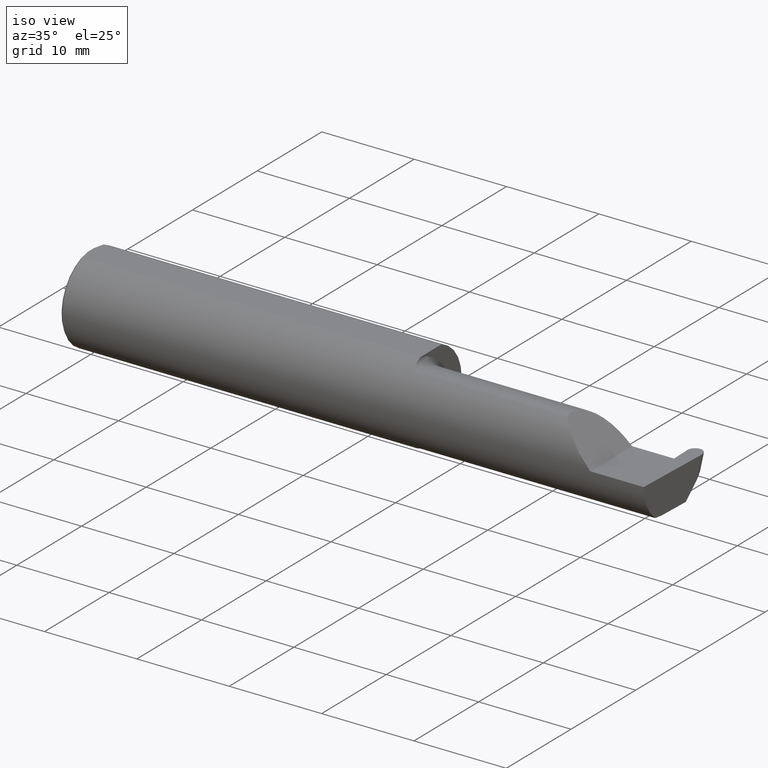
[diagram: clean part render]
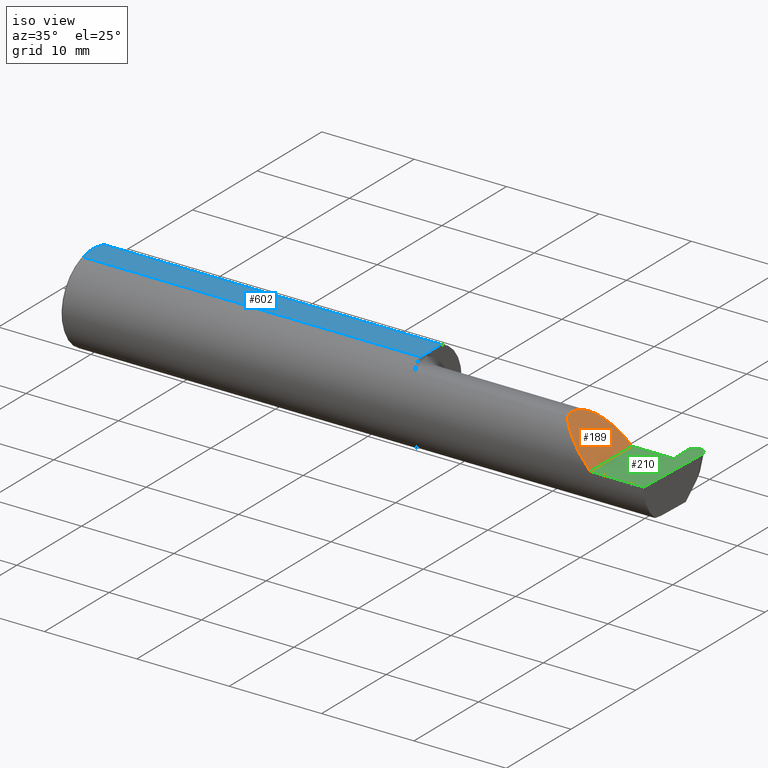
[diagram: same view with three faces highlighted in distinct colors, each labeled with its STEP entity id]
A machine part, iso view with three faces highlighted in distinct colors.
Their STEP definitions:

[orange] entity #189 — the highlighted planar face has unit normal (-0.7071, 0, -0.7071).
#40 = VERTEX_POINT ( 'NONE', #167 ) ;
#65 = DIRECTION ( 'NONE',  ( -0.7071067811865441310, 0.000000000000000000, -0.7071067811865510144 ) ) ;
#93 = EDGE_CURVE ( 'NONE', #40, #289, #173, .T. ) ;
#95 = CARTESIAN_POINT ( 'NONE',  ( 2.113883229301068312, -0.1172600179964011224, 0.1461167706989300596 ) ) ;
#107 = CARTESIAN_POINT ( 'NONE',  ( 2.202189699843947857, -0.1873500000000000165, 0.05781030015605082700 ) ) ;
#116 = ORIENTED_EDGE ( 'NONE', *, *, #372, .T. ) ;
#137 = DIRECTION ( 'NONE',  ( -0.000000000000000000, 1.000000000000000000, -0.000000000000000000 ) ) ;
#167 = CARTESIAN_POINT ( 'NONE',  ( 2.260000000000000231, -0.1873499999999999888, 2.939152317953647352E-17 ) ) ;
#173 =( BOUNDED_CURVE ( )  B_SPLINE_CURVE ( 3, ( #226, #107, #545, #337 ),
 .UNSPECIFIED., .F., .F. ) 
 B_SPLINE_CURVE_WITH_KNOTS ( ( 4, 4 ),
 ( 4.712388980384688786, 5.606916381293133966 ),
 .UNSPECIFIED. ) 
 CURVE ( )  GEOMETRIC_REPRESENTATION_ITEM ( )  RATIONAL_B_SPLINE_CURVE ( ( 1.000000000000000000, 0.9344226172588806500, 0.9344226172588806500, 1.000000000000000000 ) ) 
 REPRESENTATION_ITEM ( '' )  );
#189 = ADVANCED_FACE ( 'NONE', ( #456 ), #518, .F. ) ;
#226 = CARTESIAN_POINT ( 'NONE',  ( 2.260000000000000231, -0.1873499999999999888, 2.939152317953647352E-17 ) ) ;
#265 = CARTESIAN_POINT ( 'NONE',  ( 2.113883229301068312, -0.1172600179964011224, 0.1461167706989300596 ) ) ;
#286 = VECTOR ( 'NONE', #137, 39.37007874015748143 ) ;
#289 = VERTEX_POINT ( 'NONE', #95 ) ;
#291 = DIRECTION ( 'NONE',  ( -0.7071067811865509034, 0.000000000000000000, 0.7071067811865440200 ) ) ;
#315 = CARTESIAN_POINT ( 'NONE',  ( 2.090221225029926355, -0.01530148607434194015, 0.1697787749700729321 ) ) ;
#317 = EDGE_CURVE ( 'NONE', #289, #427, #324, .T. ) ;
#324 =( BOUNDED_CURVE ( )  B_SPLINE_CURVE ( 3, ( #265, #315, #630, #692 ),
 .UNSPECIFIED., .F., .T. ) 
 B_SPLINE_CURVE_WITH_KNOTS ( ( 4, 4 ),
 ( 6.055147272130139591, 7.853981633974482790 ),
 .UNSPECIFIED. ) 
 CURVE ( )  GEOMETRIC_REPRESENTATION_ITEM ( )  RATIONAL_B_SPLINE_CURVE ( ( 1.000000000000000000, 0.7480442670255260662, 0.7480442670255260662, 1.000000000000000000 ) ) 
 REPRESENTATION_ITEM ( '' )  );
#337 = CARTESIAN_POINT ( 'NONE',  ( 2.113883229301068312, -0.1172600179964011224, 0.1461167706989300596 ) ) ;
#372 = EDGE_CURVE ( 'NONE', #40, #427, #696, .T. ) ;
#427 = VERTEX_POINT ( 'NONE', #661 ) ;
#456 = FACE_OUTER_BOUND ( 'NONE', #644, .T. ) ;
#510 = ORIENTED_EDGE ( 'NONE', *, *, #317, .F. ) ;
#518 = PLANE ( 'NONE',  #666 ) ;
#519 = ORIENTED_EDGE ( 'NONE', *, *, #93, .F. ) ;
#545 = CARTESIAN_POINT ( 'NONE',  ( 2.150065971957465294, -0.1623470442677543146, 0.1099340280425333688 ) ) ;
#564 = CARTESIAN_POINT ( 'NONE',  ( 2.260000000000000231, -0.2500000000000000555, 2.939152317953647352E-17 ) ) ;
#630 = CARTESIAN_POINT ( 'NONE',  ( 2.155331797197862720, 0.06664999999999998703, 0.1046682028021363453 ) ) ;
#644 = EDGE_LOOP ( 'NONE', ( #510, #519, #116 ) ) ;
#661 = CARTESIAN_POINT ( 'NONE',  ( 2.260000000000000231, 0.06665000000000000091, 1.285879139104721225E-16 ) ) ;
#666 = AXIS2_PLACEMENT_3D ( 'NONE', #564, #65, #291 ) ;
#692 = CARTESIAN_POINT ( 'NONE',  ( 2.260000000000000231, 0.06665000000000000091, 1.285879139104721225E-16 ) ) ;
#696 = LINE ( 'NONE', #699, #286 ) ;
#699 = CARTESIAN_POINT ( 'NONE',  ( 2.260000000000000231, -0.2500000000000000555, 2.939152317953647352E-17 ) ) ;

[blue] entity #602 — the highlighted planar face has unit normal (0, 0, 1).
#9 = CARTESIAN_POINT ( 'NONE',  ( 1.450000000000000178, 0.1873499999999997667, 0.1763499999999999235 ) ) ;
#30 = ORIENTED_EDGE ( 'NONE', *, *, #448, .F. ) ;
#34 = ORIENTED_EDGE ( 'NONE', *, *, #60, .T. ) ;
#55 = CARTESIAN_POINT ( 'NONE',  ( 0.005151108632379722968, -0.04888864921576022843, 0.1763499999999999235 ) ) ;
#60 = EDGE_CURVE ( 'NONE', #432, #79, #393, .T. ) ;
#79 = VERTEX_POINT ( 'NONE', #218 ) ;
#81 = EDGE_CURVE ( 'NONE', #79, #233, #444, .T. ) ;
#90 = VECTOR ( 'NONE', #208, 39.37007874015748143 ) ;
#100 = CARTESIAN_POINT ( 'NONE',  ( 0.000000000000000000, -0.06325108694718235836, 0.1763499999999999235 ) ) ;
#112 = EDGE_LOOP ( 'NONE', ( #487, #34, #628, #625, #213, #30 ) ) ;
#129 = CARTESIAN_POINT ( 'NONE',  ( 0.000000000000000000, 0.01880691362238934988, 0.1763499999999999235 ) ) ;
#145 = AXIS2_PLACEMENT_3D ( 'NONE', #517, #511, #523 ) ;
#160 = CARTESIAN_POINT ( 'NONE',  ( 0.001595548104417008695, -0.03385300050298640367, 0.1763499999999999235 ) ) ;
#174 = B_SPLINE_CURVE_WITH_KNOTS ( 'NONE', 3,
 ( #129, #177, #353, #311 ),
 .UNSPECIFIED., .F., .F.,
 ( 4, 4 ),
 ( 0.01188664626022242071, 0.01304646959483746725 ),
 .UNSPECIFIED. ) ;
#177 = CARTESIAN_POINT ( 'NONE',  ( 0.001616639753276021213, 0.03405189565400638246, 0.1763499999999999235 ) ) ;
#186 = EDGE_CURVE ( 'NONE', #401, #262, #300, .T. ) ;
#208 = DIRECTION ( 'NONE',  ( 1.000000000000000000, 0.000000000000000000, 0.000000000000000000 ) ) ;
#213 = ORIENTED_EDGE ( 'NONE', *, *, #186, .F. ) ;
#218 = CARTESIAN_POINT ( 'NONE',  ( 1.450000000000000178, 0.06325108694718235836, 0.1763499999999999235 ) ) ;
#232 = CARTESIAN_POINT ( 'NONE',  ( 0.000000000000000000, 0.01880691362238934988, 0.1763499999999999235 ) ) ;
#233 = VERTEX_POINT ( 'NONE', #452 ) ;
#262 = VERTEX_POINT ( 'NONE', #232 ) ;
#264 = EDGE_CURVE ( 'NONE', #262, #233, #174, .T. ) ;
#287 = CARTESIAN_POINT ( 'NONE',  ( 1.450000000000000178, -0.06325108694718287183, 0.1763499999999999235 ) ) ;
#300 = LINE ( 'NONE', #398, #560 ) ;
#311 = CARTESIAN_POINT ( 'NONE',  ( 0.01000000000000013205, 0.06325108694718235836, 0.1763499999999999235 ) ) ;
#319 = EDGE_CURVE ( 'NONE', #565, #432, #473, .T. ) ;
#353 = CARTESIAN_POINT ( 'NONE',  ( 0.005155213631852488369, 0.04890080824240059659, 0.1763499999999999235 ) ) ;
#384 = CARTESIAN_POINT ( 'NONE',  ( 0.000000000000000000, 0.06325108694718235836, 0.1763499999999999235 ) ) ;
#390 = DIRECTION ( 'NONE',  ( -5.190412334829047496E-17, 1.000000000000000000, 0.000000000000000000 ) ) ;
#393 = LINE ( 'NONE', #9, #453 ) ;
#398 = CARTESIAN_POINT ( 'NONE',  ( 0.000000000000000000, 0.1873499999999998500, 0.1763499999999999235 ) ) ;
#401 = VERTEX_POINT ( 'NONE', #559 ) ;
#432 = VERTEX_POINT ( 'NONE', #287 ) ;
#444 = LINE ( 'NONE', #384, #605 ) ;
#446 = DIRECTION ( 'NONE',  ( -0.000000000000000000, 1.000000000000000000, -0.000000000000000000 ) ) ;
#447 = CARTESIAN_POINT ( 'NONE',  ( 0.01000000000000013205, -0.06325108694718235836, 0.1763499999999999235 ) ) ;
#448 = EDGE_CURVE ( 'NONE', #565, #401, #530, .T. ) ;
#452 = CARTESIAN_POINT ( 'NONE',  ( 0.01000000000000013205, 0.06325108694718235836, 0.1763499999999999235 ) ) ;
#453 = VECTOR ( 'NONE', #390, 39.37007874015748143 ) ;
#473 = LINE ( 'NONE', #100, #90 ) ;
#487 = ORIENTED_EDGE ( 'NONE', *, *, #319, .T. ) ;
#511 = DIRECTION ( 'NONE',  ( 0.000000000000000000, 0.000000000000000000, 1.000000000000000000 ) ) ;
#517 = CARTESIAN_POINT ( 'NONE',  ( 2.876828993045917215, 0.1873499999999998500, 0.1763499999999999235 ) ) ;
#523 = DIRECTION ( 'NONE',  ( 1.000000000000000000, 0.000000000000000000, -0.000000000000000000 ) ) ;
#530 = B_SPLINE_CURVE_WITH_KNOTS ( 'NONE', 3,
 ( #447, #55, #160, #671 ),
 .UNSPECIFIED., .F., .F.,
 ( 4, 4 ),
 ( 0.009771445421851331775, 0.01092787937989104369 ),
 .UNSPECIFIED. ) ;
#559 = CARTESIAN_POINT ( 'NONE',  ( 0.000000000000000000, -0.01880691362238934641, 0.1763499999999999235 ) ) ;
#560 = VECTOR ( 'NONE', #446, 39.37007874015748143 ) ;
#565 = VERTEX_POINT ( 'NONE', #682 ) ;
#575 = PLANE ( 'NONE',  #145 ) ;
#602 = ADVANCED_FACE ( 'NONE', ( #626 ), #575, .T. ) ;
#605 = VECTOR ( 'NONE', #667, 39.37007874015748143 ) ;
#625 = ORIENTED_EDGE ( 'NONE', *, *, #264, .F. ) ;
#626 = FACE_OUTER_BOUND ( 'NONE', #112, .T. ) ;
#628 = ORIENTED_EDGE ( 'NONE', *, *, #81, .T. ) ;
#667 = DIRECTION ( 'NONE',  ( -1.000000000000000000, -0.000000000000000000, -0.000000000000000000 ) ) ;
#671 = CARTESIAN_POINT ( 'NONE',  ( 0.000000000000000000, -0.01880691362238934641, 0.1763499999999999235 ) ) ;
#682 = CARTESIAN_POINT ( 'NONE',  ( 0.01000000000000013205, -0.06325108694718235836, 0.1763499999999999235 ) ) ;

[green] entity #210 — the highlighted planar face has unit normal (-0, 0, -1).
#20 = CARTESIAN_POINT ( 'NONE',  ( 2.436927982915767288, 0.1506083980881225137, 0.000000000000000000 ) ) ;
#31 = CARTESIAN_POINT ( 'NONE',  ( 2.436927982915767288, 0.1506083980881225137, 0.000000000000000000 ) ) ;
#40 = VERTEX_POINT ( 'NONE', #167 ) ;
#49 = ORIENTED_EDGE ( 'NONE', *, *, #372, .F. ) ;
#62 = LINE ( 'NONE', #269, #584 ) ;
#75 = CARTESIAN_POINT ( 'NONE',  ( 2.468139380300150343, 0.1846500000000000363, 0.000000000000000000 ) ) ;
#82 = CARTESIAN_POINT ( 'NONE',  ( 2.488131149766799943, -0.1873499999999999888, 0.000000000000000000 ) ) ;
#89 = DIRECTION ( 'NONE',  ( -1.000000000000000000, -0.000000000000000000, -0.000000000000000000 ) ) ;
#96 = ORIENTED_EDGE ( 'NONE', *, *, #243, .F. ) ;
#134 = PLANE ( 'NONE',  #434 ) ;
#137 = DIRECTION ( 'NONE',  ( -0.000000000000000000, 1.000000000000000000, -0.000000000000000000 ) ) ;
#148 = VECTOR ( 'NONE', #302, 39.37007874015748143 ) ;
#153 = CARTESIAN_POINT ( 'NONE',  ( 3.749399456654646757E-32, -0.1873499999999999610, 3.061616997868383634E-16 ) ) ;
#154 = ORIENTED_EDGE ( 'NONE', *, *, #623, .F. ) ;
#163 = CARTESIAN_POINT ( 'NONE',  ( 2.468721519699850209, 0.1846500000000000363, 0.000000000000000000 ) ) ;
#167 = CARTESIAN_POINT ( 'NONE',  ( 2.260000000000000231, -0.1873499999999999888, 2.939152317953647352E-17 ) ) ;
#187 = VERTEX_POINT ( 'NONE', #616 ) ;
#200 = LINE ( 'NONE', #467, #148 ) ;
#210 = ADVANCED_FACE ( 'NONE', ( #513 ), #134, .F. ) ;
#224 = ORIENTED_EDGE ( 'NONE', *, *, #558, .T. ) ;
#227 = VERTEX_POINT ( 'NONE', #82 ) ;
#231 = DIRECTION ( 'NONE',  ( 1.000000000000000000, 7.488084056613327882E-15, -0.000000000000000000 ) ) ;
#240 = VECTOR ( 'NONE', #633, 39.37007874015748143 ) ;
#242 = CARTESIAN_POINT ( 'NONE',  ( 2.500000000000000000, -0.2500000000000000555, 0.000000000000000000 ) ) ;
#243 = EDGE_CURVE ( 'NONE', #507, #227, #295, .T. ) ;
#245 = CARTESIAN_POINT ( 'NONE',  ( 2.436880131316879083, 0.1519786885938757270, 0.000000000000000000 ) ) ;
#254 = CARTESIAN_POINT ( 'NONE',  ( 2.468139380300150343, 0.1846500000000000363, 0.000000000000000000 ) ) ;
#261 = LINE ( 'NONE', #153, #614 ) ;
#269 = CARTESIAN_POINT ( 'NONE',  ( 2.439859874782298377, 0.06664999999999998703, 0.000000000000000000 ) ) ;
#275 = EDGE_CURVE ( 'NONE', #427, #187, #624, .T. ) ;
#280 = VERTEX_POINT ( 'NONE', #422 ) ;
#286 = VECTOR ( 'NONE', #137, 39.37007874015748143 ) ;
#292 = VERTEX_POINT ( 'NONE', #254 ) ;
#295 = LINE ( 'NONE', #680, #342 ) ;
#302 = DIRECTION ( 'NONE',  ( 1.000000000000000000, -0.000000000000000000, -0.000000000000000000 ) ) ;
#305 = EDGE_CURVE ( 'NONE', #227, #40, #261, .T. ) ;
#309 = CARTESIAN_POINT ( 'NONE',  ( 2.436235694025149279, 0.1704329581048291409, 7.809760431069554296E-18 ) ) ;
#342 = VECTOR ( 'NONE', #506, 39.37007874015747433 ) ;
#372 = EDGE_CURVE ( 'NONE', #40, #427, #696, .T. ) ;
#377 = VERTEX_POINT ( 'NONE', #426 ) ;
#385 = CARTESIAN_POINT ( 'NONE',  ( 2.499932917084233264, 0.1506083980881225415, 0.000000000000000000 ) ) ;
#399 = VECTOR ( 'NONE', #687, 39.37007874015748143 ) ;
#415 = ORIENTED_EDGE ( 'NONE', *, *, #275, .F. ) ;
#422 = CARTESIAN_POINT ( 'NONE',  ( 2.468721519699850209, 0.1846500000000000363, 0.000000000000000000 ) ) ;
#426 = CARTESIAN_POINT ( 'NONE',  ( 2.439859874782298377, 0.06664999999999998703, 0.000000000000000000 ) ) ;
#427 = VERTEX_POINT ( 'NONE', #661 ) ;
#434 = AXIS2_PLACEMENT_3D ( 'NONE', #242, #567, #668 ) ;
#463 = ORIENTED_EDGE ( 'NONE', *, *, #472, .F. ) ;
#467 = CARTESIAN_POINT ( 'NONE',  ( -0.001039370078739994957, 0.1846500000000000363, 0.000000000000000000 ) ) ;
#470 = VERTEX_POINT ( 'NONE', #20 ) ;
#472 = EDGE_CURVE ( 'NONE', #187, #377, #62, .T. ) ;
#474 = EDGE_CURVE ( 'NONE', #507, #280, #497, .T. ) ;
#478 = EDGE_LOOP ( 'NONE', ( #697, #224, #154, #463, #415, #49, #632, #96, #705 ) ) ;
#497 =( BOUNDED_CURVE ( )  B_SPLINE_CURVE ( 3, ( #707, #656, #547, #163 ),
 .UNSPECIFIED., .F., .T. ) 
 B_SPLINE_CURVE_WITH_KNOTS ( ( 4, 4 ),
 ( 1.627103621474502049, 3.225696776093215590 ),
 .UNSPECIFIED. ) 
 CURVE ( )  GEOMETRIC_REPRESENTATION_ITEM ( )  RATIONAL_B_SPLINE_CURVE ( ( 1.000000000000000000, 0.7981407609938108161, 0.7981407609938108161, 1.000000000000000000 ) ) 
 REPRESENTATION_ITEM ( '' )  );
#506 = DIRECTION ( 'NONE',  ( -0.03489949670249308661, -0.9993908270190960952, 0.000000000000000000 ) ) ;
#507 = VERTEX_POINT ( 'NONE', #385 ) ;
#513 = FACE_OUTER_BOUND ( 'NONE', #478, .T. ) ;
#536 = CARTESIAN_POINT ( 'NONE',  ( 1.450000000000000178, 0.06664999999999995928, 1.285879139104721225E-16 ) ) ;
#547 = CARTESIAN_POINT ( 'NONE',  ( 2.487590162989234077, 0.1846499999999998698, -1.088211360020845268E-17 ) ) ;
#558 = EDGE_CURVE ( 'NONE', #292, #470, #691, .T. ) ;
#567 = DIRECTION ( 'NONE',  ( -1.224646799147353947E-16, 0.000000000000000000, -1.000000000000000000 ) ) ;
#584 = VECTOR ( 'NONE', #231, 39.37007874015748143 ) ;
#614 = VECTOR ( 'NONE', #89, 39.37007874015748143 ) ;
#616 = CARTESIAN_POINT ( 'NONE',  ( 2.430739223982273156, 0.06664999999999991764, 0.000000000000000000 ) ) ;
#623 = EDGE_CURVE ( 'NONE', #377, #470, #695, .T. ) ;
#624 = LINE ( 'NONE', #536, #399 ) ;
#631 = EDGE_CURVE ( 'NONE', #292, #280, #200, .T. ) ;
#632 = ORIENTED_EDGE ( 'NONE', *, *, #305, .F. ) ;
#633 = DIRECTION ( 'NONE',  ( -0.03489949670249346131, 0.9993908270190959842, -0.000000000000000000 ) ) ;
#656 = CARTESIAN_POINT ( 'NONE',  ( 2.500625205974851273, 0.1704329581048291409, -1.247844596711688058E-17 ) ) ;
#661 = CARTESIAN_POINT ( 'NONE',  ( 2.260000000000000231, 0.06665000000000000091, 1.285879139104721225E-16 ) ) ;
#668 = DIRECTION ( 'NONE',  ( -1.000000000000000000, 0.000000000000000000, 1.224646799147353947E-16 ) ) ;
#680 = CARTESIAN_POINT ( 'NONE',  ( 2.499980768683121024, 0.1519786885938757826, 0.000000000000000000 ) ) ;
#685 = CARTESIAN_POINT ( 'NONE',  ( 2.449270737010766030, 0.1846499999999998975, 6.213428064161130250E-18 ) ) ;
#687 = DIRECTION ( 'NONE',  ( 1.000000000000000000, 5.190412334829047496E-17, 0.000000000000000000 ) ) ;
#691 =( BOUNDED_CURVE ( )  B_SPLINE_CURVE ( 3, ( #75, #685, #309, #31 ),
 .UNSPECIFIED., .F., .T. ) 
 B_SPLINE_CURVE_WITH_KNOTS ( ( 4, 4 ),
 ( 3.057488531086369754, 4.656081685705084183 ),
 .UNSPECIFIED. ) 
 CURVE ( )  GEOMETRIC_REPRESENTATION_ITEM ( )  RATIONAL_B_SPLINE_CURVE ( ( 1.000000000000000000, 0.7981407609938104830, 0.7981407609938104830, 1.000000000000000000 ) ) 
 REPRESENTATION_ITEM ( '' )  );
#695 = LINE ( 'NONE', #245, #240 ) ;
#696 = LINE ( 'NONE', #699, #286 ) ;
#697 = ORIENTED_EDGE ( 'NONE', *, *, #631, .F. ) ;
#699 = CARTESIAN_POINT ( 'NONE',  ( 2.260000000000000231, -0.2500000000000000555, 2.939152317953647352E-17 ) ) ;
#705 = ORIENTED_EDGE ( 'NONE', *, *, #474, .T. ) ;
#707 = CARTESIAN_POINT ( 'NONE',  ( 2.499932917084233264, 0.1506083980881225415, 0.000000000000000000 ) ) ;